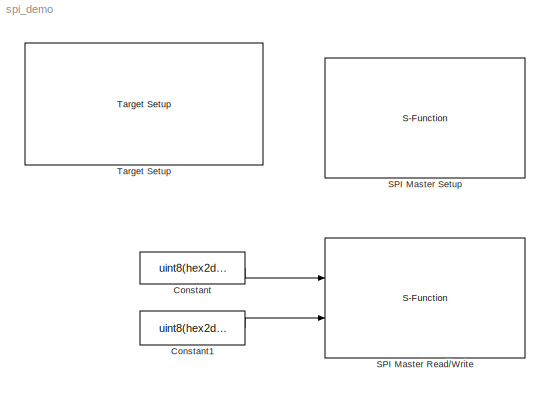
MODEL spi_demo
KIND model
CONFIG PreLoadFcn = waijung.modelPreload; % Required for working with Waijung Blockset. Do not remove.
BLOCK [Constant] Constant
  OutDataType = fixdt(1, 16)
  OutScaling = 2^0
  Value = uint8(hex2dec('AA'))
BLOCK [Constant] Constant1
  OutDataType = fixdt(1, 16)
  OutScaling = 2^0
  Value = uint8(hex2dec('55'))
BLOCK [S-Function] SPI Master Read//Write
  EnableBusSupport = off
  FunctionName = stm32f0_spimaster
  MaskCallbackString = stm32f0_spimaster_callback('configuration');|stm32f0_spimaster_callback('module');|stm32f0_spimaster_callback('mode');||stm32f0_spimaster_callback('direction');||||stm32f0_spimaster_callback('datacount');|stm32f0_spimaster_callback('nssmode');|||||||||stm32f0_spimaster_callback('confstr');|stm32f0_spimaster_callback('sampletime');|stm32f0_spimaster_callback('sampletimestr');|stm32f0_spimaster_call...<+16ch>
  MaskDescription = Status:\n 0 - Success.\n Otherwise - Fail.
  MaskDisplay = text(0.5, 0.5, 'Module: SPI2 (Master)\\nRead/ Write\\nTs (sec): 0.1','ver','middle','hor','center');port_label('input', 1,'Wr0 (uint8)');port_label('input', 2,'Wr1 (uint8)');port_label('output', 1,'Status');port_label('output', 2,'Rd0 (uint8)');port_label('output', 3,'Rd1 (uint8)');
  MaskEnableString = on,on,off,off,on,on,on,on,on,on,on,on,on,on,on,on,off,off,on,on,on,on
  MaskHelp = web(fullfile(waijungdocroot,'stm32f0_spimaster_readwrite.htm'), '-browser')
  MaskIconFrame = on
  MaskIconOpaque = on
  MaskIconRotate = none
  MaskIconUnits = normalized
  MaskInitialization = stm32f0_spimaster_callback('init');
  MaskPortRotate = default
  MaskPromptString = Configuration:|SPI Module:|Mode:|Last module:|Direction:|Data format:|Buad rate prescaler: Pclk/|Clock polarity (CPOL)/ Clock phase (CPHA):|Data Read/Write count:|Slave/chip select (nSS, nCS) mode|Slave/chip select (nSS, nCS) pin|Slave/chip select port (nSS, nCS)|Slave/chip select pin (nSS, nCS)|SCLK pin:|MISO pin:|MOSI pin:|Input type array|Output type array|Configuration string|Sample time (sec)...<+45ch>
  MaskSelfModifiable = on
  MaskStyleString = popup(Setup|Transaction),popup(1|2),popup(Read/ Write|Read|Write),edit,popup(Full-Duplex|Half-Duplex_Tx|Half-Duplex_Rx),popup(8bit/ FirstBit_MSB|8bit/ FirstBit_LSB|16bit/ FirstBit_MSB|16bit/ FirstBit_LSB),popup(2|4|8|16|32|64|128|256),popup(CPOL_Low/ CPHA_1Edge|CPOL_Low/ CPHA_2Edge|CPOL_High/ CPHA_1Edge|CPOL_High/ CPHA_2Edge),edit,popup(Hardware|Software|Custom),popup(Not used|A4|A15),popup(A|B|C|...<+153ch>
  MaskTabNameString = ,,,,,,,,,,,,,,,,,,,,,
  MaskToolTipString = on,on,on,on,on,on,on,on,on,on,on,on,on,on,on,on,on,on,on,on,on,on
  MaskTunableValueString = off,off,off,off,off,off,off,off,off,off,off,off,off,off,off,off,off,off,off,off,off,off
  MaskType = stm32f0_spimaster
  MaskValueString = Transaction|2|Read/ Write|1|Full-Duplex|8bit/ FirstBit_MSB|4|CPOL_Low/ CPHA_1Edge|2|Custom|Not used|E|0|A5|A6|A7|[2 3 3]|[3 7 3 3]|[\"SPI_Direction_2Lines_FullDuplex\",\"8b\",\"MSB\",\"Low\",\"1Edge\",\"4\",\"Custom\",\"0\",\"x\",\"x\",\"0\",\"0\",\"x\",\"x\",\"1\",\"A\",\"5\",\"\",\"1\",\"A\",\"6\",\"\",\"1\",\"A\",\"7\",\"\",\"1\",\"0\",\"0\",\"0\",\"0\",\"0\",\"0\",\"0\",\"0\",\"0\",\"0\"]|0.1|...<+22ch>
  MaskVarAliasString = ,,,,,,,,,,,,,,,,,,,,,
  MaskVariables = configuration=&1;module=&2;mode=&3;lastmodule=&4;direction=&5;dataformat=&6;prescaler=&7;cpolcpha=&8;datacount=@9;nssmode=&10;nsspin=&11;softnssport=&12;softnsspin=&13;sckpin=&14;misopin=&15;mosipin=&16;inputtypearray=@17;outputtypearray=@18;confstr=&19;sampletime=@20;sampletimestr=&21;blockid=&22;
  MaskVisibilityString = off,on,off,off,off,off,off,off,on,off,off,off,off,off,off,off,off,off,off,on,off,off
  Parameters = mode,configuration,module,datacount,inputtypearray,outputtypearray,confstr,sampletime,sampletimestr,blockid
  Ports = [2, 3]
BLOCK [S-Function] SPI Master Setup
  EnableBusSupport = off
  FunctionName = stm32f0_spimaster
  MaskCallbackString = stm32f0_spimaster_callback('configuration');|stm32f0_spimaster_callback('module');|stm32f0_spimaster_callback('mode');||stm32f0_spimaster_callback('direction');||||stm32f0_spimaster_callback('baudrate');||stm32f0_spimaster_callback('datacount');|stm32f0_spimaster_callback('nssmode');|||||||||||stm32f0_spimaster_callback('confstr');|stm32f0_spimaster_callback('sampletime');|stm32f0_spimaster_callba...<+59ch>
  MaskDescription = Direction:\n - Full-Duplex, use this mode when need to send and receive data at same clock.\n - Half-Duplex_Tx, this mode is to transmit data to slave only. Pin MISO (Rx) can be free for other function.\n - Half-Duplex_Rx, this mode is to receive data from slave only. Pin MOSIO (Tx) can be free for other function.\nData format:\n  This configuration is depending on the specification of slave devic...<+752ch>
  MaskDisplay = text(0.5, 0.5, 'Module: SPI2 (Master)\\nFull-Duplex\\nBaudrate: 12000000','ver','middle','hor','center');
  MaskEnableString = on,on,off,off,on,on,off,on,on,on,off,on,on,on,on,on,on,on,on,on,off,off,on,on,on,on
  MaskHelp = web(fullfile(waijungdocroot,'stm32f0_spimaster_setup.htm'), '-browser')
  MaskIconFrame = on
  MaskIconOpaque = on
  MaskIconRotate = none
  MaskIconUnits = normalized
  MaskInitialization = stm32f0_spimaster_callback('init');
  MaskPortRotate = default
  MaskPromptString = Configuration:|SPI Module:|Mode:|Last module:|Direction:|Data format:|Buad rate prescaler: Pclk/|Last PCLK|Baud rate (Hz)|Clock polarity (CPOL)/ Clock phase (CPHA):|Data Write count:|Slave/chip select (nSS, nCS) mode|Slave/chip select (nSS, nCS) pin|Slave/chip select port (nSS, nCS)|Slave/chip select pin (nSS, nCS)|SCLK pin:|MISO pin:|MOSI pin:|Slave/chip select (nSS, nCS) delay time (uS)|Data fra...<+137ch>
  MaskSelfModifiable = on
  MaskStyleString = popup(Setup|Transaction),popup(1|2),popup(Read/ Write|Read|Write),edit,popup(Full-Duplex|Half-Duplex_Tx|Half-Duplex_Rx),popup(8bit/ FirstBit_MSB|8bit/ FirstBit_LSB|16bit/ FirstBit_MSB|16bit/ FirstBit_LSB),popup(2|4|8|16|32|64|128|256),edit,popup(Not set|12000000|6000000|3000000|1500000|750000|375000|187500),popup(CPOL_Low/ CPHA_1Edge|CPOL_Low/ CPHA_2Edge|CPOL_High/ CPHA_1Edge|CPOL_High/ CPHA_2Edge...<+253ch>
  MaskTabNameString = ,,,,,,,,,,,,,,,,,,,,,,,,,
  MaskToolTipString = on,on,on,on,on,on,on,on,on,on,on,on,on,on,on,on,on,on,on,on,on,on,on,on,on,on
  MaskTunableValueString = off,off,off,off,off,off,off,off,off,off,off,off,off,off,off,off,off,off,off,off,off,off,off,off,off,off
  MaskType = stm32f0_spimaster
  MaskValueString = Setup|2|Write|2|Full-Duplex|8bit/ FirstBit_MSB|4|48000000|12000000|CPOL_Low/ CPHA_1Edge|0|Software|Not used|B|9|B10|B14|B15|0|0|[0]|[0]|[\"SPI_Direction_2Lines_FullDuplex\",\"8b\",\"MSB\",\"Low\",\"1Edge\",\"4\",\"Soft\",\"0\",\"x\",\"x\",\"0\",\"1\",\"B\",\"9\",\"1\",\"B\",\"10\",\"5\",\"1\",\"B\",\"14\",\"0\",\"1\",\"B\",\"15\",\"0\",\"0\",\"1\",\"0\",\"0\",\"0\",\"0\",\"0\",\"0\",\"0\",\"0\",\"...<+26ch>
  MaskVarAliasString = ,,,,,,,,,,,,,,,,,,,,,,,,,
  MaskVariables = configuration=&1;module=&2;mode=&3;lastmodule=&4;direction=&5;dataformat=&6;prescaler=&7;lastpclk=&8;baudrate=&9;cpolcpha=&10;datacount=@11;nssmode=&12;nsspin=&13;softnssport=&14;softnsspin=&15;sckpin=&16;misopin=&17;mosipin=&18;nssdelay=&19;framedelay=&20;inputtypearray=@21;outputtypearray=@22;confstr=&23;sampletime=@24;sampletimestr=&25;blockid=&26;
  MaskVisibilityString = off,on,off,off,on,on,on,off,on,on,off,on,off,on,on,on,on,on,on,on,off,off,off,off,off,off
  Parameters = mode,configuration,module,datacount,inputtypearray,outputtypearray,confstr,sampletime,sampletimestr,blockid
  Ports = []
BLOCK [Reference] Target Setup  REF=stm32f0_device_config_lib/Target Setup
  Ports = []
  Priority = 100
  SourceBlock = stm32f0_device_config_lib/Target Setup
  SourceType = stm32f0_target_setup
  assemblercontrolstr = $(patsubst %, -I%, .) -mcpu=cortex-m0 -mtune=cortex-m0 -mthumb -Wall -O3 -Wa,-amhls=$(<:.s=.lst) -D__STACK_SIZE=$(STACK_SIZE) -D__HEAP_SIZE=$(HEAP_SIZE)
  blockid = TargetSetup
  clockconfig = FiO MOTE-ST Default (HSEOSC-8MHz/HCLK-48MHz)
  compiler = GNU ARM
  compilercontrolstr = $(patsubst %, -I%, .) -mcpu=cortex-m0 -mthumb -mabi=aapcs -Wall -O3 -mfloat-abi=soft -ffunction-sections -fdata-sections -fno-strict-aliasing -fno-builtin --short-enums
  editctrlstr = on
  enableautocompiledownload = on
  execprofile = None
  flashlength = 128k
  flashorigin = 0x8000000
  fullchiperase = off
  hclk = 48000000
  heapsize = 0x200
  hseval = 8000000
  lastprofileruart = 3
  linkercontrolstr = -T$(LD_SCRIPT) -Wl,-Map=$(MAP),--cref,--no-warn-mismatch -mcpu=cortex-m0 -mthumb  -Wall -O3 -mabi=aapcs -lc -specs=nosys.specs
  manualsetsampletime = off
  mcu = STM32F072CB (LQFP48)
  mcustr = STM32F072CB
  previous_compiler = GNU ARM
  profilerbaud = 500000
  profilerinitstr = 0.1,48000000,4800000,500000,0
  profilertxpin = Not used
  profileruart = 3
  programmerinterface = aMG USB Connect
  ramlength = 16k
  ramorigin = 0x20000000
  runafterdownload = on
  sampletime = 0.1
  showmemoryconfiguration = on
  stacksize = 0x400
  stdlib = STM32F072
  system_stm32f0xx_c_path = <path>
  systickreloadvalue = 4800000
  useextram = off
LINE Constant1:1 -> SPI Master Read//Write:2
LINE Constant:1 -> SPI Master Read//Write:1
note: 1 file-system path scrubbed to <path> (not preserved elsewhere — flat text is the only slx artifact)
